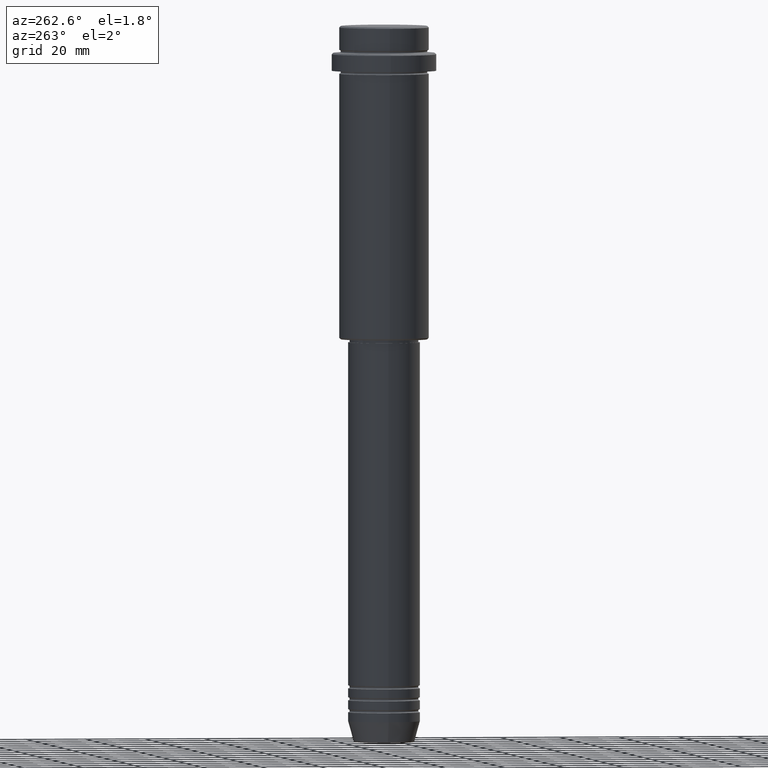
[diagram: clean part render]
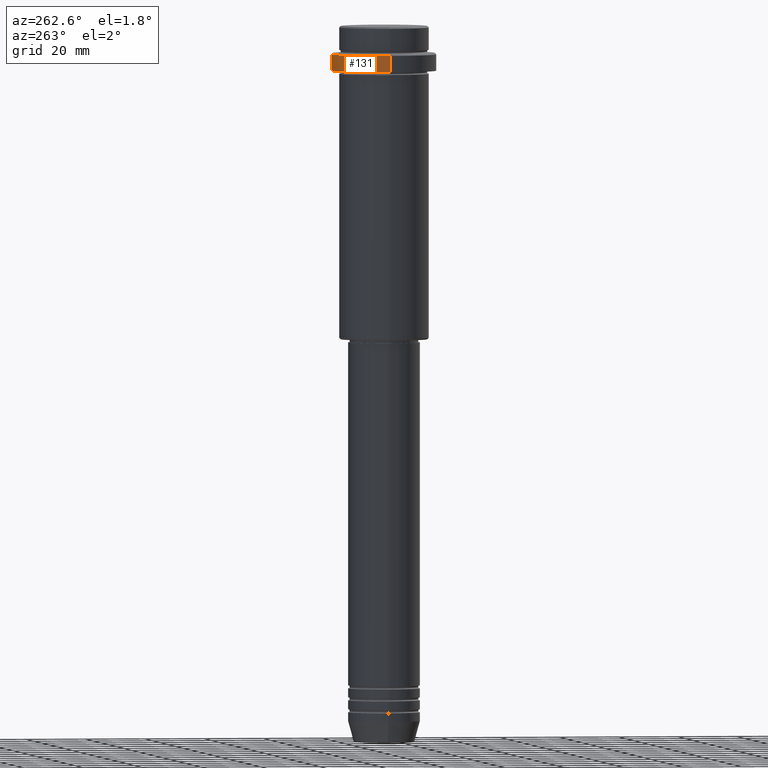
[diagram: same view with one face highlighted and labeled with its STEP entity id]
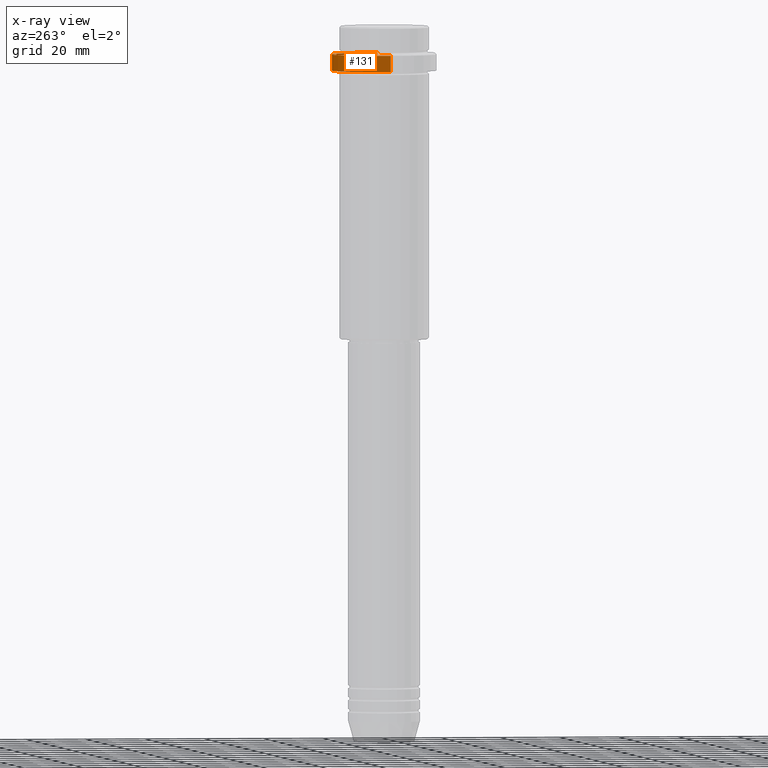
[diagram: x-ray of the same camera — body ghosted, the highlighted face saturated]
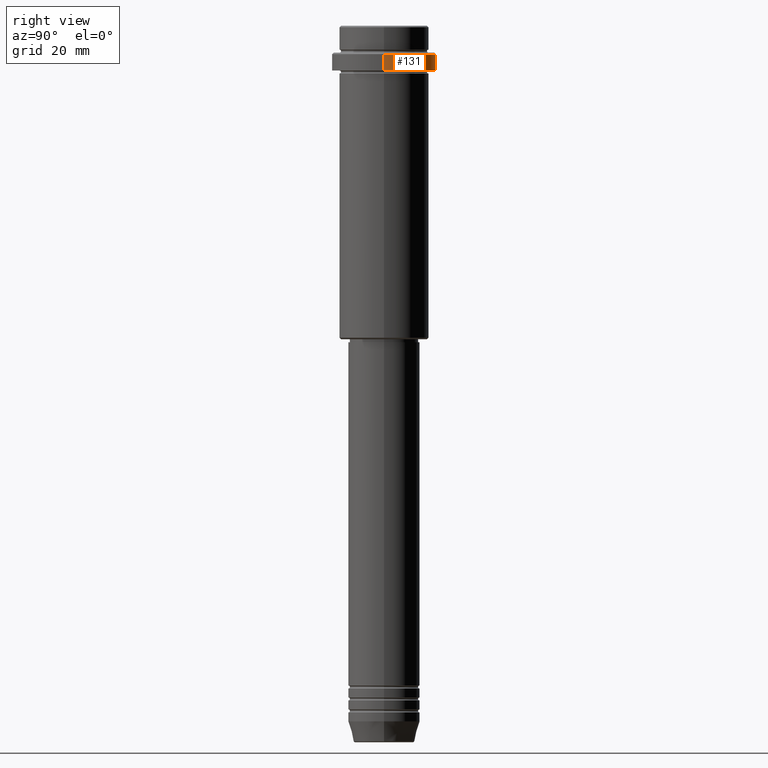
[diagram: same view with one face highlighted and labeled with its STEP entity id]
A machine part, auxiliary view. The second image highlights one B-rep face of the part: STEP entity #131.
The next image is the same camera in x-ray: the body ghosted, the highlighted face saturated — about 7% of this face is hidden behind the body in this view.
A second angle (right view) of the same face is appended — the face is thin or edge-on in the first view.
In plain terms, the highlighted cylindrical surface (partial cylindrical patch) has radius 17.5 mm, axis along (-0, -0, 1).
Its self-contained STEP definition (entity closure, byte-faithful):
#36 = CYLINDRICAL_SURFACE ( 'NONE', #194, 17.50000000000000000 ) ;
#87 = CARTESIAN_POINT ( 'NONE',  ( 17.50000000000000000, 0.000000000000000000, -9.499999999999973355 ) ) ;
#95 = DIRECTION ( 'NONE',  ( -0.000000000000000000, -0.000000000000000000, 1.000000000000000000 ) ) ;
#120 = VERTEX_POINT ( 'NONE', #601 ) ;
#131 = ADVANCED_FACE ( 'NONE', ( #1018 ), #36, .T. ) ;
#133 = VERTEX_POINT ( 'NONE', #156 ) ;
#156 = CARTESIAN_POINT ( 'NONE',  ( -17.50000000000000000, 2.143131898507868248E-15, -9.499999999999973355 ) ) ;
#158 = EDGE_CURVE ( 'NONE', #1158, #1193, #684, .T. ) ;
#194 = AXIS2_PLACEMENT_3D ( 'NONE', #1366, #586, #824 ) ;
#324 = ORIENTED_EDGE ( 'NONE', *, *, #158, .F. ) ;
#360 = ORIENTED_EDGE ( 'NONE', *, *, #388, .T. ) ;
#374 = VECTOR ( 'NONE', #700, 1000.000000000000000 ) ;
#388 = EDGE_CURVE ( 'NONE', #1158, #120, #754, .T. ) ;
#466 = CARTESIAN_POINT ( 'NONE',  ( 17.50000000000000000, 0.000000000000000000, 0.000000000000000000 ) ) ;
#562 = CARTESIAN_POINT ( 'NONE',  ( 0.000000000000000000, 0.000000000000000000, -9.499999999999973355 ) ) ;
#568 = DIRECTION ( 'NONE',  ( 1.000000000000000000, 0.000000000000000000, 0.000000000000000000 ) ) ;
#586 = DIRECTION ( 'NONE',  ( -0.000000000000000000, -0.000000000000000000, 1.000000000000000000 ) ) ;
#601 = CARTESIAN_POINT ( 'NONE',  ( -17.50000000000000000, 2.143131898507868248E-15, -15.00000000000000178 ) ) ;
#674 = EDGE_LOOP ( 'NONE', ( #360, #1116, #802, #324 ) ) ;
#684 = LINE ( 'NONE', #466, #374 ) ;
#687 = VECTOR ( 'NONE', #95, 1000.000000000000000 ) ;
#700 = DIRECTION ( 'NONE',  ( -0.000000000000000000, -0.000000000000000000, 1.000000000000000000 ) ) ;
#714 = CARTESIAN_POINT ( 'NONE',  ( -17.50000000000000000, 2.143131898507868248E-15, 0.000000000000000000 ) ) ;
#725 = LINE ( 'NONE', #714, #687 ) ;
#754 = CIRCLE ( 'NONE', #1097, 17.50000000000000000 ) ;
#779 = AXIS2_PLACEMENT_3D ( 'NONE', #562, #1346, #568 ) ;
#789 = EDGE_CURVE ( 'NONE', #120, #133, #725, .T. ) ;
#802 = ORIENTED_EDGE ( 'NONE', *, *, #1134, .T. ) ;
#806 = CIRCLE ( 'NONE', #779, 17.50000000000000000 ) ;
#824 = DIRECTION ( 'NONE',  ( 1.000000000000000000, 0.000000000000000000, 0.000000000000000000 ) ) ;
#832 = DIRECTION ( 'NONE',  ( -0.000000000000000000, -0.000000000000000000, 1.000000000000000000 ) ) ;
#1018 = FACE_OUTER_BOUND ( 'NONE', #674, .T. ) ;
#1059 = DIRECTION ( 'NONE',  ( 1.000000000000000000, 0.000000000000000000, 0.000000000000000000 ) ) ;
#1097 = AXIS2_PLACEMENT_3D ( 'NONE', #1409, #832, #1059 ) ;
#1116 = ORIENTED_EDGE ( 'NONE', *, *, #789, .T. ) ;
#1121 = CARTESIAN_POINT ( 'NONE',  ( 17.50000000000000000, 0.000000000000000000, -15.00000000000000178 ) ) ;
#1134 = EDGE_CURVE ( 'NONE', #133, #1193, #806, .T. ) ;
#1158 = VERTEX_POINT ( 'NONE', #1121 ) ;
#1193 = VERTEX_POINT ( 'NONE', #87 ) ;
#1346 = DIRECTION ( 'NONE',  ( 0.000000000000000000, 0.000000000000000000, -1.000000000000000000 ) ) ;
#1366 = CARTESIAN_POINT ( 'NONE',  ( 0.000000000000000000, 0.000000000000000000, 0.000000000000000000 ) ) ;
#1409 = CARTESIAN_POINT ( 'NONE',  ( 0.000000000000000000, 0.000000000000000000, -15.00000000000000178 ) ) ;